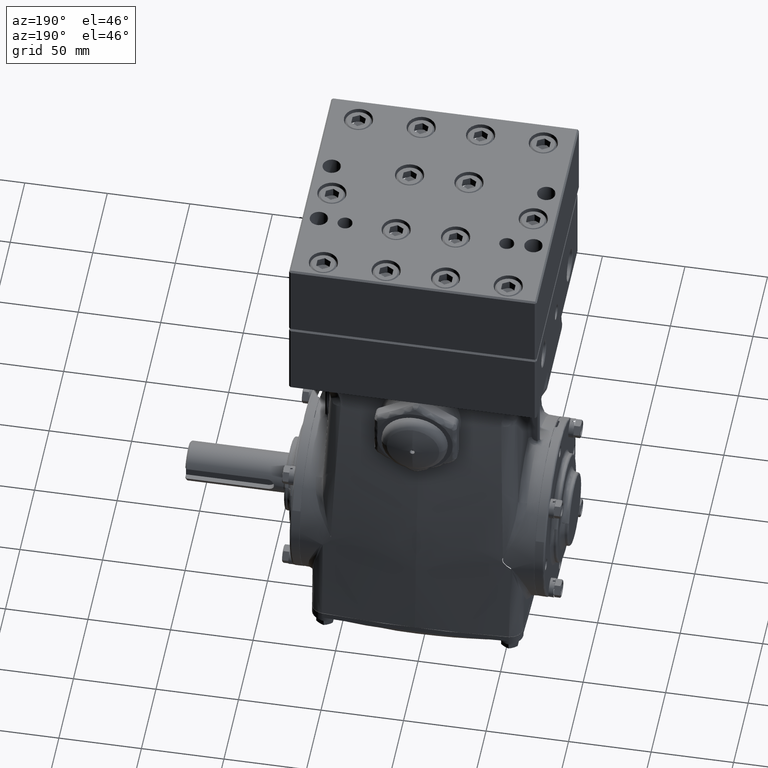
[diagram: clean part render]
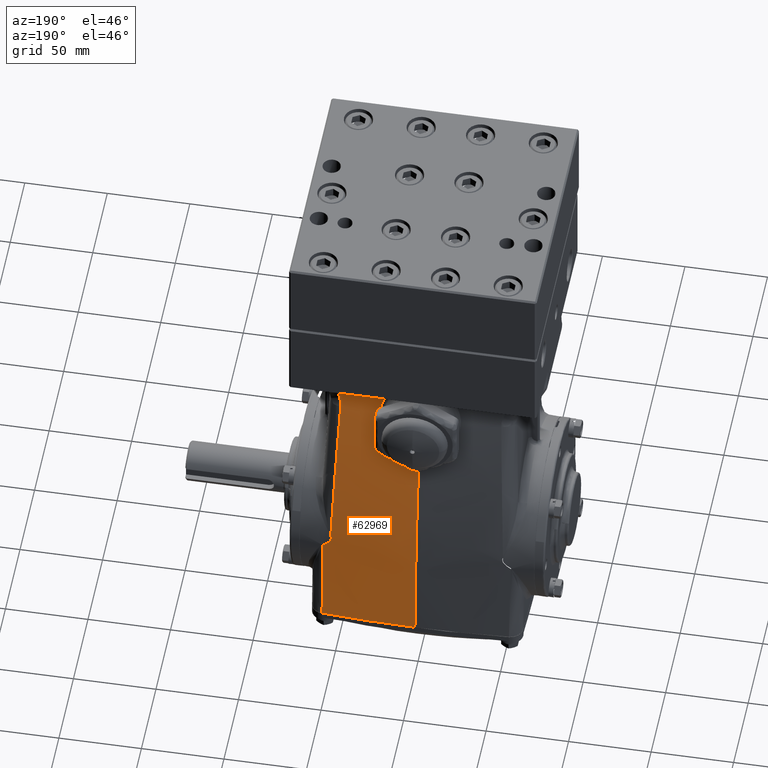
[diagram: same view with one face highlighted and labeled with its STEP entity id]
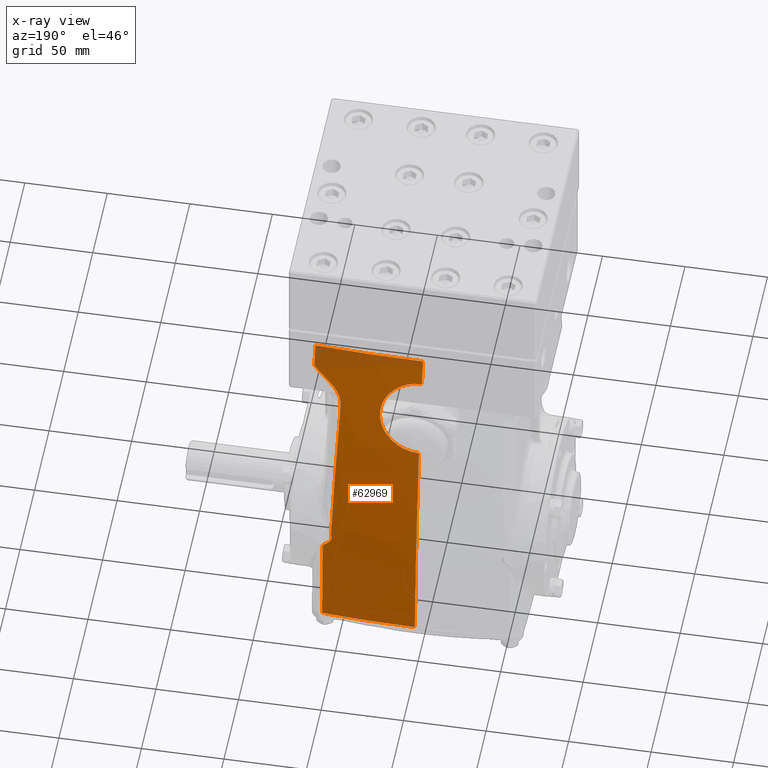
[diagram: x-ray of the same camera — body ghosted, the highlighted face saturated]
A machine part, auxiliary view. The second image highlights one B-rep face of the part: STEP entity #62969.
The next image is the same camera in x-ray: the body ghosted, the highlighted face saturated — about 7% of this face is hidden behind the body in this view.
In plain terms, the highlighted face is a freeform B-spline surface patch.
Its self-contained STEP definition (entity closure, byte-faithful):
#79 = CARTESIAN_POINT ( 'NONE',  ( -0.4731394191495172374, 2.398237061164405937, -2.165354330708661568 ) ) ;
#1351 = CARTESIAN_POINT ( 'NONE',  ( -0.8095103919857050689, 1.292140362101252382, 5.708661417322824505 ) ) ;
#1766 = CARTESIAN_POINT ( 'NONE',  ( -1.566192897389171446, 1.270407001257443991, 5.708661417322867138 ) ) ;
#2013 = CARTESIAN_POINT ( 'NONE',  ( 2.578671170726355211, 1.335102641929536871, 5.127045243281220799 ) ) ;
#2976 = B_SPLINE_CURVE_WITH_KNOTS ( 'NONE', 3,
 ( #28593, #34588, #73546, #47418 ),
 .UNSPECIFIED., .F., .F.,
 ( 4, 4 ),
 ( 0.001088878662660275332, 0.05488596565795428317 ),
 .UNSPECIFIED. ) ;
#2985 = EDGE_CURVE ( 'NONE', #10885, #54857, #49123, .T. ) ;
#3016 = CARTESIAN_POINT ( 'NONE',  ( 0.5933181033504503210, 1.791224152829905547, 3.356988519879162691 ) ) ;
#3397 = CARTESIAN_POINT ( 'NONE',  ( -7.629761195857950561E-17, 1.982659120498347916, 2.275230264263858437 ) ) ;
#3430 = CARTESIAN_POINT ( 'NONE',  ( 0.2066455304282949768, 1.831067194595412229, 3.175578635901488145 ) ) ;
#3567 = CARTESIAN_POINT ( 'NONE',  ( 2.043608718765483889, 2.136991848240978431, 0.1870679647836670512 ) ) ;
#3673 = CARTESIAN_POINT ( 'NONE',  ( 2.586414031944188618, 1.330825853974931805, 5.146055892413254007 ) ) ;
#3855 = CARTESIAN_POINT ( 'NONE',  ( 0.8708494686695560372, 1.719662461424737998, 3.696078290583389769 ) ) ;
#3992 = CARTESIAN_POINT ( 'NONE',  ( 2.118289369877804251, 2.142698611774983330, 0.06166686124301928168 ) ) ;
#4284 = CARTESIAN_POINT ( 'NONE',  ( 0.9611287857313430827, 1.658899699653148430, 3.995873098052594941 ) ) ;
#4344 = CARTESIAN_POINT ( 'NONE',  ( 3.450959980213676461E-17, 1.299212598425197429, 5.708661417322835163 ) ) ;
#4380 = CARTESIAN_POINT ( 'NONE',  ( 2.812979403157050307, 2.274754709963536570, -2.165354330708661568 ) ) ;
#4665 = CARTESIAN_POINT ( 'NONE',  ( 2.113476934372326976, 1.460827687103822603, 4.664159022983963787 ) ) ;
#4809 = CARTESIAN_POINT ( 'NONE',  ( -0.2434275427088355148, 1.298707510032789170, 5.708661417322846710 ) ) ;
#5015 = CARTESIAN_POINT ( 'NONE',  ( 2.044355463987427957, 2.128279285250508579, 0.2680828113186349282 ) ) ;
#5094 = CARTESIAN_POINT ( 'NONE',  ( -8.016133500422119341E-17, 2.106884914907209971, 1.393649014934724262 ) ) ;
#5130 = CARTESIAN_POINT ( 'NONE',  ( 0.08054166425364038540, 1.446093476583458992, 5.086882738810285076 ) ) ;
#5228 = CARTESIAN_POINT ( 'NONE',  ( 1.150346110494637530, 1.283976514928851342, 5.708661417322833387 ) ) ;
#5275 = B_SPLINE_SURFACE_WITH_KNOTS ( 'NONE', 3, 3, ( 
 ( #75894, #17222, #10801, #36942 ),
 ( #4380, #82755, #24096, #58330 ),
 ( #77590, #31791, #39036, #37355 ),
 ( #70344, #38621, #78450, #25806 ),
 ( #11629, #12902, #57896, #51895 ),
 ( #26230, #31379, #19335, #12045 ),
 ( #24519, #37788, #77168, #43773 ),
 ( #38208, #51467, #18065, #63907 ),
 ( #32219, #71204, #71627, #5648 ),
 ( #83613, #76732, #24947, #5228 ),
 ( #12476, #51027, #64769, #18903 ),
 ( #45050, #6084, #57477, #18478 ),
 ( #84460, #69916, #44616, #70771 ),
 ( #64345, #65191, #84029, #78025 ),
 ( #25370, #32654, #44195, #45463 ),
 ( #6515, #58761, #50628, #4809 ),
 ( #79, #30942, #11210, #52322 ),
 ( #63488, #57048, #83181, #1351 ),
 ( #54018, #79734, #47599, #45898 ),
 ( #60042, #21474, #27922, #1766 ),
 ( #80145, #33487, #66896, #78875 ),
 ( #8616, #52751, #40751, #33915 ),
 ( #8203, #59187, #20174, #21044 ),
 ( #73731, #46327, #34768, #39888 ),
 ( #72468, #40319, #15025, #13760 ),
 ( #47180, #67315, #27508, #41179 ),
 ( #72880, #73305, #72047, #60890 ),
 ( #66042, #13319, #7355, #14597 ) ),
 .UNSPECIFIED., .F., .F., .F.,
 ( 4, 1, 1, 1, 1, 1, 1, 1, 1, 1, 1, 3, 1, 1, 1, 1, 1, 1, 1, 1, 1, 1, 1, 4 ),
 ( 4, 4 ),
 ( 0.6820721574386665598, 0.6959246563835279620, 0.7035427212275893183, 0.7193976784518302248, 0.7310405802590583813, 0.7359332488469740863, 0.7508238822397268475, 0.7638475608825302521, 0.7796596398469348710, 0.7995163485322880348, 0.8173264764016470174, 0.8410360787193331689, 0.8577107850873244566, 0.8637457220820379256, 0.8805901526646464639, 0.9065920388027239873, 0.9224714650153007511, 0.9387315542144891722, 0.9421836685404010314, 0.9588536976265762402, 0.9664841599499356395, 0.9748837514135768600, 0.9901004416486960391, 1.000000000000000000 ),
 ( 0.000000000000000000, 1.000000000000000000 ),
 .UNSPECIFIED. ) ;
#5648 = CARTESIAN_POINT ( 'NONE',  ( 1.464488406949919552, 1.274012937168632842, 5.708661417322844933 ) ) ;
#5774 = VERTEX_POINT ( 'NONE', #51621 ) ;
#5984 = CARTESIAN_POINT ( 'NONE',  ( 0.6433779996093795805, 1.492703628457151543, 4.848150405952392994 ) ) ;
#6084 = CARTESIAN_POINT ( 'NONE',  ( 0.3973269798802252506, 2.297068369690827616, 0.4897784465330241033 ) ) ;
#6515 = CARTESIAN_POINT ( 'NONE',  ( -0.2386529819870307489, 2.400899943846330320, -2.165354330708661568 ) ) ;
#6850 = CARTESIAN_POINT ( 'NONE',  ( 0.7902471345203802011, 1.524914881969420266, 4.681808476390661333 ) ) ;
#7351 = CARTESIAN_POINT ( 'NONE',  ( 2.586362804630043755, 1.329823753665074770, 5.151270064738946886 ) ) ;
#7355 = CARTESIAN_POINT ( 'NONE',  ( -2.913385843901003192, 1.691985680221068877, 3.127925920230767431 ) ) ;
#7581 = CARTESIAN_POINT ( 'NONE',  ( 0.4056649939589584419, 1.297898323476693649, 5.708661417322814735 ) ) ;
#8203 = CARTESIAN_POINT ( 'NONE',  ( -2.035968259211032638, 2.335433637454252143, -2.165354330708661568 ) ) ;
#8616 = CARTESIAN_POINT ( 'NONE',  ( -1.866877324122242721, 2.345940473350991429, -2.165354330708661568 ) ) ;
#9101 = CARTESIAN_POINT ( 'NONE',  ( -3.553331779381568324E-16, 2.401107312964255058, -2.153091527327260835 ) ) ;
#9458 = CARTESIAN_POINT ( 'NONE',  ( 0.3149968055351912710, 1.824372806192152252, 3.205623488492979067 ) ) ;
#9997 = CARTESIAN_POINT ( 'NONE',  ( 2.038984479122270432, 2.132266257378619301, 0.2358320036178845058 ) ) ;
#10286 = CARTESIAN_POINT ( 'NONE',  ( 0.7307716510373686303, 1.763420215501402266, 3.486847099895347579 ) ) ;
#10704 = CARTESIAN_POINT ( 'NONE',  ( 0.9424672581809908634, 1.677446185038369952, 3.903529103138576595 ) ) ;
#10801 = CARTESIAN_POINT ( 'NONE',  ( 2.913385809642305091, 1.691985680221154587, 3.127925920230778090 ) ) ;
#10885 = VERTEX_POINT ( 'NONE', #20951 ) ;
#11073 = CARTESIAN_POINT ( 'NONE',  ( 1.982876757387885824, 1.507254981816013029, 4.474301887717918369 ) ) ;
#11210 = CARTESIAN_POINT ( 'NONE',  ( -0.4873200862093256536, 1.924545779200155238, 3.127925920230781642 ) ) ;
#11629 = CARTESIAN_POINT ( 'NONE',  ( 2.189576524486965603, 2.325080261920541513, -2.165354330708661568 ) ) ;
#11842 = CARTESIAN_POINT ( 'NONE',  ( 1.943646624093668951, 1.254362676313996783, 5.708661417322836940 ) ) ;
#12045 = CARTESIAN_POINT ( 'NONE',  ( 2.132997294791504572, 1.245100427256950137, 5.708661417322847598 ) ) ;
#12390 = CARTESIAN_POINT ( 'NONE',  ( 0.1605620357445411150, 1.447988655397608238, 5.077233423560211456 ) ) ;
#12476 = CARTESIAN_POINT ( 'NONE',  ( 0.7520193225572913143, 2.393118508680718737, -2.165354330708661568 ) ) ;
#12685 = CARTESIAN_POINT ( 'NONE',  ( 2.047901024090821309, 2.126340813064907742, 0.2828387324246887102 ) ) ;
#12712 = EDGE_CURVE ( 'NONE', #54857, #83894, #2976, .T. ) ;
#12805 = CARTESIAN_POINT ( 'NONE',  ( 0.5160278655444365814, 1.474502422586200012, 4.941722194200433904 ) ) ;
#12902 = CARTESIAN_POINT ( 'NONE',  ( 2.234415192802543526, 2.147607685230850105, 0.4897784465330339287 ) ) ;
#12994 = CARTESIAN_POINT ( 'NONE',  ( 1.889681467910129429E-08, 1.398385728573260156, 5.296640703349395629 ) ) ;
#13119 = CARTESIAN_POINT ( 'NONE',  ( 2.580420361868525525, 1.219814423293576366, 5.708661417322829834 ) ) ;
#13231 = CARTESIAN_POINT ( 'NONE',  ( 0.8837879089344028438, 1.556684492105498752, 4.517574585329223069 ) ) ;
#13319 = CARTESIAN_POINT ( 'NONE',  ( -2.913385628152182161, 2.048762232609131040, 0.4897784465330273784 ) ) ;
#13370 = CARTESIAN_POINT ( 'NONE',  ( 2.580420361868525525, 1.219814423293576366, 5.708661417322829834 ) ) ;
#13387 = CARTESIAN_POINT ( 'NONE',  ( 1.913792689305000794, 1.578652126433170100, 4.124995731966824231 ) ) ;
#13526 = ORIENTED_EDGE ( 'NONE', *, *, #12712, .T. ) ;
#13760 = CARTESIAN_POINT ( 'NONE',  ( -2.546430131488103932, 1.222062046991425621, 5.708661417322830722 ) ) ;
#14399 = VERTEX_POINT ( 'NONE', #45421 ) ;
#14597 = CARTESIAN_POINT ( 'NONE',  ( -2.913385826771653697, 1.197969208711458622, 5.708661417322836940 ) ) ;
#15025 = CARTESIAN_POINT ( 'NONE',  ( -2.511391663655022644, 1.752002329188374841, 3.127925920230763879 ) ) ;
#15323 = VERTEX_POINT ( 'NONE', #4344 ) ;
#15850 = EDGE_CURVE ( 'NONE', #19364, #15323, #50796, .T. ) ;
#15868 = CARTESIAN_POINT ( 'NONE',  ( 0.3449787976630959152, 1.821950353961405922, 3.216540131001417890 ) ) ;
#16841 = CARTESIAN_POINT ( 'NONE',  ( 2.086663981160558290, 2.141946370163340330, 0.09931180522621377293 ) ) ;
#17222 = CARTESIAN_POINT ( 'NONE',  ( 2.913386025391125234, 2.048762232609160794, 0.4897784465330322634 ) ) ;
#17258 = CARTESIAN_POINT ( 'NONE',  ( 2.077214970515636416, 2.141491778610241870, 0.1126631891245868516 ) ) ;
#17684 = CARTESIAN_POINT ( 'NONE',  ( 2.053717711146643587, 2.139269078108408717, 0.1560372837815801328 ) ) ;
#17861 = CARTESIAN_POINT ( 'NONE',  ( 2.576322194412808742, 1.220071041648136623, 5.708661417322824505 ) ) ;
#18065 = CARTESIAN_POINT ( 'NONE',  ( 1.694981807724714296, 1.848142482010741716, 3.127925920230768320 ) ) ;
#18101 = CARTESIAN_POINT ( 'NONE',  ( 2.040459019290793652, 2.135564256478419853, 0.2034737644382947352 ) ) ;
#18389 = CARTESIAN_POINT ( 'NONE',  ( 0.3151986056433667138, 1.455377961310618584, 5.039591650425441216 ) ) ;
#18478 = CARTESIAN_POINT ( 'NONE',  ( 0.4056649939589584419, 1.297898323476693649, 5.708661417322814735 ) ) ;
#18695 = CARTESIAN_POINT ( 'NONE',  ( 2.052843254757446001, 2.123694918800838050, 0.3027902077404308057 ) ) ;
#18702 = CARTESIAN_POINT ( 'NONE',  ( 1.464488406949919552, 1.274012937168632842, 5.708661417322844933 ) ) ;
#18814 = CARTESIAN_POINT ( 'NONE',  ( 0.06446866798773862040, 1.445856567849097329, 5.088089217278129794 ) ) ;
#18903 = CARTESIAN_POINT ( 'NONE',  ( 0.8019535934125048282, 1.292120820694525829, 5.708661417322820952 ) ) ;
#19248 = CARTESIAN_POINT ( 'NONE',  ( 0.4888797921504503541, 1.471286706367559649, 4.958214325787497323 ) ) ;
#19335 = CARTESIAN_POINT ( 'NONE',  ( 2.085131295870260804, 1.806265684984544873, 3.127925920230786083 ) ) ;
#19364 = VERTEX_POINT ( 'NONE', #13370 ) ;
#19390 = CARTESIAN_POINT ( 'NONE',  ( 2.227242516835840735, 2.321209563805544995, -2.152759186897168053 ) ) ;
#19662 = CARTESIAN_POINT ( 'NONE',  ( 0.9656080779111774204, 1.621775079081216209, 4.183527801579442595 ) ) ;
#20007 = CARTESIAN_POINT ( 'NONE',  ( 2.586362804630043755, 1.329823753665074770, 5.151270064738946886 ) ) ;
#20174 = CARTESIAN_POINT ( 'NONE',  ( -2.131484495458442208, 1.801026039677056101, 3.127925920230771872 ) ) ;
#20916 = EDGE_CURVE ( 'NONE', #62693, #63453, #41826, .T. ) ;
#20951 = CARTESIAN_POINT ( 'NONE',  ( 2.044355463987427957, 2.128279285250508579, 0.2680828113186349282 ) ) ;
#21044 = CARTESIAN_POINT ( 'NONE',  ( -2.179242577519465929, 1.242815352902282511, 5.708661417322839604 ) ) ;
#21474 = CARTESIAN_POINT ( 'NONE',  ( -1.480950586178896522, 2.231805334558643494, 0.4897784465330393688 ) ) ;
#22784 = B_SPLINE_CURVE_WITH_KNOTS ( 'NONE', 3,
 ( #13387, #38265, #84519, #31436, #70835, #65251 ),
 .UNSPECIFIED., .F., .F.,
 ( 4, 2, 4 ),
 ( 0.000000000000000000, 0.04904723555558240800, 0.09809447111116481599 ),
 .UNSPECIFIED. ) ;
#23153 = CARTESIAN_POINT ( 'NONE',  ( 0.7895195932548948470, 1.747619812788680616, 3.561772888436794293 ) ) ;
#23955 = CARTESIAN_POINT ( 'NONE',  ( 2.096129776760800034, 1.465843969454385887, 4.644982890269670150 ) ) ;
#23999 = CARTESIAN_POINT ( 'NONE',  ( 0.06459929520378440704, 1.836057302116699042, 3.153322082174860430 ) ) ;
#24096 = CARTESIAN_POINT ( 'NONE',  ( 2.832087334218518215, 1.704813401921131399, 3.127925920230778090 ) ) ;
#24133 = CARTESIAN_POINT ( 'NONE',  ( 2.040573113143062667, 2.130372523749104019, 0.2520858116330776388 ) ) ;
#24140 = EDGE_CURVE ( 'NONE', #83894, #14399, #49806, .T. ) ;
#24519 = CARTESIAN_POINT ( 'NONE',  ( 1.798349607840920461, 2.349958156103974627, -2.165354330708661568 ) ) ;
#24848 = CARTESIAN_POINT ( 'NONE',  ( 0.8408534539225615001, 1.540288871572166318, 4.602309156754101238 ) ) ;
#24947 = CARTESIAN_POINT ( 'NONE',  ( 1.120923444174019235, 1.894876309026148453, 3.127925920230774093 ) ) ;
#25163 = CARTESIAN_POINT ( 'NONE',  ( 1.741295670112191551, 1.263397575016612429, 5.708661417322822729 ) ) ;
#25281 = CARTESIAN_POINT ( 'NONE',  ( 0.9672713820068501445, 1.646538536074291015, 4.058006522140316541 ) ) ;
#25370 = CARTESIAN_POINT ( 'NONE',  ( -0.1020157036538342776, 2.401574803149599813, -2.165354330708661568 ) ) ;
#25719 = CARTESIAN_POINT ( 'NONE',  ( 0.9599596636209277722, 1.609408501972310557, 4.246538372213342960 ) ) ;
#25806 = CARTESIAN_POINT ( 'NONE',  ( 2.523490070267365493, 1.223445930611731125, 5.708661417322820064 ) ) ;
#26146 = CARTESIAN_POINT ( 'NONE',  ( 0.7319415609452398774, 1.510511002020254345, 4.756252534259797216 ) ) ;
#26230 = CARTESIAN_POINT ( 'NONE',  ( 1.989399371181384657, 2.338284998638617829, -2.165354330708661568 ) ) ;
#27373 = CARTESIAN_POINT ( 'NONE',  ( 1.913792689305000794, 1.578652126433170100, 4.124995731966824231 ) ) ;
#27508 = CARTESIAN_POINT ( 'NONE',  ( -2.708159283295305642, 1.723791484228667459, 3.127925920230769652 ) ) ;
#27524 = EDGE_CURVE ( 'NONE', #63453, #39028, #22784, .T. ) ;
#27643 = CARTESIAN_POINT ( 'NONE',  ( 2.584535606851970702, 1.294080410689277816, 5.337251396087705935 ) ) ;
#27922 = CARTESIAN_POINT ( 'NONE',  ( -1.523571933390364785, 1.864023738764600591, 3.127925920230789192 ) ) ;
#28593 = CARTESIAN_POINT ( 'NONE',  ( 2.244154975526539531, 2.140548279587432656, -0.04263853052005076028 ) ) ;
#29186 = CARTESIAN_POINT ( 'NONE',  ( 0.6057620011881454936, 1.789096022879973713, 3.366838808613130674 ) ) ;
#29592 = CARTESIAN_POINT ( 'NONE',  ( 0.4328265377979035877, 1.813782680613042597, 3.253492456797081989 ) ) ;
#29720 = CARTESIAN_POINT ( 'NONE',  ( 2.217111855764114292, 2.141468998871419060, -0.02405646177959843562 ) ) ;
#30018 = CARTESIAN_POINT ( 'NONE',  ( 0.9064667844229428173, 1.701914183292754679, 3.782771815187817577 ) ) ;
#30802 = CARTESIAN_POINT ( 'NONE',  ( 2.063488888649752884, 1.476050141854796438, 4.604872648964010828 ) ) ;
#30942 = CARTESIAN_POINT ( 'NONE',  ( -0.4802293617885408095, 2.293642939336617115, 0.4897784465330360937 ) ) ;
#31379 = CARTESIAN_POINT ( 'NONE',  ( 2.037265628463433398, 2.172062645620683519, 0.4897784465330372039 ) ) ;
#31436 = CARTESIAN_POINT ( 'NONE',  ( 2.010220420681156472, 1.978156669164423676, 1.583179683012722938 ) ) ;
#31541 = ORIENTED_EDGE ( 'NONE', *, *, #80340, .T. ) ;
#31700 = CARTESIAN_POINT ( 'NONE',  ( 0.04032141249026690438, 1.445619475605324000, 5.089296836793732126 ) ) ;
#31791 = CARTESIAN_POINT ( 'NONE',  ( 2.684844189044222063, 2.084204787240034662, 0.4897784465330306536 ) ) ;
#32130 = CARTESIAN_POINT ( 'NONE',  ( 0.1286849885896271528, 1.447041223724454762, 5.082056845242141740 ) ) ;
#32219 = CARTESIAN_POINT ( 'NONE',  ( 1.345329668388619115, 2.372960332906649317, -2.165354330708661568 ) ) ;
#32440 = CARTESIAN_POINT ( 'NONE',  ( 2.052668002272747927, 2.123788338986134505, 0.3020877454172159471 ) ) ;
#32632 = B_SPLINE_CURVE_WITH_KNOTS ( 'NONE', 3,
 ( #34053, #38766, #27643, #66605 ),
 .UNSPECIFIED., .F., .F.,
 ( 4, 4 ),
 ( -5.999999999966940033E-08, 0.01443155766111012782 ),
 .UNSPECIFIED. ) ;
#32654 = CARTESIAN_POINT ( 'NONE',  ( -0.1019934165441797186, 2.300768595909193692, 0.4897784465330312087 ) ) ;
#33381 = VERTEX_POINT ( 'NONE', #7351 ) ;
#33487 = CARTESIAN_POINT ( 'NONE',  ( -1.695585503688044504, 2.210467917730762899, 0.4897784465330279335 ) ) ;
#33708 = CARTESIAN_POINT ( 'NONE',  ( 0.8019535934125048282, 1.292120820694525829, 5.708661417322820952 ) ) ;
#33915 = CARTESIAN_POINT ( 'NONE',  ( -2.012704400865588106, 1.251118121441604725, 5.708661417322830722 ) ) ;
#34053 = CARTESIAN_POINT ( 'NONE',  ( 2.580420361868525525, 1.219814423293576366, 5.708661417322829834 ) ) ;
#34588 = CARTESIAN_POINT ( 'NONE',  ( 2.239546380805879977, 2.213566551445497410, -0.7448622437288106024 ) ) ;
#34768 = CARTESIAN_POINT ( 'NONE',  ( -2.326410604817633843, 1.776570720899578237, 3.127925920230762991 ) ) ;
#35047 = B_SPLINE_CURVE_WITH_KNOTS ( 'NONE', 3,
 ( #54117, #68261, #73830, #40425 ),
 .UNSPECIFIED., .F., .F.,
 ( 4, 4 ),
 ( 0.000000000000000000, 0.01616665010958682341 ),
 .UNSPECIFIED. ) ;
#36205 = B_SPLINE_CURVE_WITH_KNOTS ( 'NONE', 3,
 ( #36387, #82192, #36810, #83046, #5094, #3397, #62107, #56494 ),
 .UNSPECIFIED., .F., .F.,
 ( 4, 2, 2, 4 ),
 ( 0.0003113998746300996462, 0.06810555726670124155, 0.1020026359627368012, 0.1358997146587723748 ),
 .UNSPECIFIED. ) ;
#36387 = CARTESIAN_POINT ( 'NONE',  ( -3.553331779381568324E-16, 2.401107312964255058, -2.153091527327260835 ) ) ;
#36810 = CARTESIAN_POINT ( 'NONE',  ( -9.459155955198532228E-16, 2.302870744067759379, -0.3757870823018082396 ) ) ;
#36849 = CARTESIAN_POINT ( 'NONE',  ( 0.9458950846975647808, 1.674355009619317380, 3.918891003596449263 ) ) ;
#36942 = CARTESIAN_POINT ( 'NONE',  ( 2.913385826771655474, 1.197969208711458622, 5.708661417322835163 ) ) ;
#36981 = CARTESIAN_POINT ( 'NONE',  ( 2.153604286739067675, 2.142677141121248408, 0.02739613417404918733 ) ) ;
#37049 = EDGE_CURVE ( 'NONE', #33381, #41632, #69622, .T. ) ;
#37215 = CARTESIAN_POINT ( 'NONE',  ( 1.954921401464340791, 1.523061787492009600, 4.402702356222214952 ) ) ;
#37355 = CARTESIAN_POINT ( 'NONE',  ( 2.727940840439588843, 1.210589729325569186, 5.708661417322829834 ) ) ;
#37579 = CARTESIAN_POINT ( 'NONE',  ( 2.484440817764909770, 1.225721470078472430, 5.708661417322824505 ) ) ;
#37788 = CARTESIAN_POINT ( 'NONE',  ( 1.846782245487677443, 2.194251839819490346, 0.4897784465330333736 ) ) ;
#38208 = CARTESIAN_POINT ( 'NONE',  ( 1.602354164347862486, 2.360792373919399001, -2.165354330708661568 ) ) ;
#38265 = CARTESIAN_POINT ( 'NONE',  ( 1.939169078520298406, 1.694725303002851735, 3.491945384865736468 ) ) ;
#38297 = CARTESIAN_POINT ( 'NONE',  ( -1.384850827037492099E-08, 1.349635227852899577, 5.502833657239617260 ) ) ;
#38330 = ORIENTED_EDGE ( 'NONE', *, *, #73334, .T. ) ;
#38621 = CARTESIAN_POINT ( 'NONE',  ( 2.450684691601683340, 2.118214908375344319, 0.4897784465330273784 ) ) ;
#38766 = CARTESIAN_POINT ( 'NONE',  ( 2.582554774261374142, 1.257421128485751272, 5.523052830132542113 ) ) ;
#38826 = ORIENTED_EDGE ( 'NONE', *, *, #20916, .T. ) ;
#39028 = VERTEX_POINT ( 'NONE', #40020 ) ;
#39036 = CARTESIAN_POINT ( 'NONE',  ( 2.706392384829025666, 1.723957603235178659, 3.127925920230774093 ) ) ;
#39888 = CARTESIAN_POINT ( 'NONE',  ( -2.369125755900576280, 1.232386614232151567, 5.708661417322828946 ) ) ;
#40020 = CARTESIAN_POINT ( 'NONE',  ( 2.053194142686559864, 2.123507996596452063, 0.3041950259637326570 ) ) ;
#40319 = CARTESIAN_POINT ( 'NONE',  ( -2.476352911878936691, 2.114609130722263863, 0.4897784465330257131 ) ) ;
#40425 = CARTESIAN_POINT ( 'NONE',  ( 2.131860052545362816, 1.455898494205196236, 4.682448122466263740 ) ) ;
#40751 = CARTESIAN_POINT ( 'NONE',  ( -1.964095400574084938, 1.820132787096657490, 3.127925920230765211 ) ) ;
#40823 = CARTESIAN_POINT ( 'NONE',  ( 0.3716019788068585794, 2.401107303656055958, -2.153091527322794185 ) ) ;
#41179 = CARTESIAN_POINT ( 'NONE',  ( -2.729947521028391666, 1.210496205736397046, 5.708661417322837828 ) ) ;
#41632 = VERTEX_POINT ( 'NONE', #44389 ) ;
#41826 = B_SPLINE_CURVE_WITH_KNOTS ( 'NONE', 3,
 ( #56485, #4665, #23955, #30802, #50064, #69776, #11073, #37215, #63351, #56907, #83034, #59047, #73165, #27373 ),
 .UNSPECIFIED., .F., .F.,
 ( 4, 2, 2, 2, 2, 2, 4 ),
 ( 0.000000000000000000, 0.002006917460411369175, 0.004013834920822738350, 0.008027669841645471496, 0.01003458730205684067, 0.01204150476246820811, 0.01605533968329094993 ),
 .UNSPECIFIED. ) ;
#42017 = CARTESIAN_POINT ( 'NONE',  ( 0.4886140263089461255, 1.807145071133905878, 3.283690386975755438 ) ) ;
#42104 = ORIENTED_EDGE ( 'NONE', *, *, #37049, .T. ) ;
#42980 = CARTESIAN_POINT ( 'NONE',  ( 2.190893994370608944, 2.142160377084879830, -0.004468358595171829754 ) ) ;
#43367 = CARTESIAN_POINT ( 'NONE',  ( 1.913792689305000794, 1.578652126433170100, 4.124995731966824231 ) ) ;
#43773 = CARTESIAN_POINT ( 'NONE',  ( 1.943646624093668951, 1.254362676313996783, 5.708661417322836940 ) ) ;
#44195 = CARTESIAN_POINT ( 'NONE',  ( -0.1019719231317473690, 1.931427949591510762, 3.127925920230771872 ) ) ;
#44389 = CARTESIAN_POINT ( 'NONE',  ( 2.574974328991057604, 1.336104400314134022, 5.123366273300666407 ) ) ;
#44525 = CARTESIAN_POINT ( 'NONE',  ( 0.7716760308857147921, 1.520005616499535472, 4.707190689330424505 ) ) ;
#44616 = CARTESIAN_POINT ( 'NONE',  ( 0.1449928827331220804, 1.931427949591510762, 3.127925920230771872 ) ) ;
#44840 = CARTESIAN_POINT ( 'NONE',  ( 1.150346110494637530, 1.283976514928851342, 5.708661417322833387 ) ) ;
#44959 = CARTESIAN_POINT ( 'NONE',  ( -1.274984242628392523E-15, 1.445461229294053629, 5.090103064882366191 ) ) ;
#45050 = CARTESIAN_POINT ( 'NONE',  ( 0.3931574066697886560, 2.399831511276485863, -2.165354330708661568 ) ) ;
#45421 = CARTESIAN_POINT ( 'NONE',  ( -3.553331779381568324E-16, 2.401107312964255058, -2.153091527327260835 ) ) ;
#45463 = CARTESIAN_POINT ( 'NONE',  ( -0.1019499836553652977, 1.299212598425203424, 5.708661417322837828 ) ) ;
#45673 = CARTESIAN_POINT ( 'NONE',  ( 2.046101504699350926, 2.127312986832227804, 0.2754674812947199292 ) ) ;
#45799 = CARTESIAN_POINT ( 'NONE',  ( 0.8703003494871582868, 1.551087081194280737, 4.546494005402068161 ) ) ;
#45898 = CARTESIAN_POINT ( 'NONE',  ( -1.192739666030848023, 1.282981708238517982, 5.708661417322778320 ) ) ;
#46327 = CARTESIAN_POINT ( 'NONE',  ( -2.283695148368128258, 2.140796000541696831, 0.4897784465330257131 ) ) ;
#46419 = ORIENTED_EDGE ( 'NONE', *, *, #49564, .T. ) ;
#46551 = CARTESIAN_POINT ( 'NONE',  ( 2.975520257473792046E-07, 1.299212598425199872, 5.708661417322837828 ) ) ;
#46966 = ORIENTED_EDGE ( 'NONE', *, *, #2985, .T. ) ;
#47180 = CARTESIAN_POINT ( 'NONE',  ( -2.664582750533174949, 2.288033759751162410, -2.165354330708661568 ) ) ;
#47418 = CARTESIAN_POINT ( 'NONE',  ( 2.227242516835840735, 2.321209563805544995, -2.152759186897168053 ) ) ;
#47599 = CARTESIAN_POINT ( 'NONE',  ( -1.161614335099249162, 1.892574789840504090, 3.127925920230731460 ) ) ;
#47781 = CARTESIAN_POINT ( 'NONE',  ( 2.244154975526539531, 2.140548279587432656, -0.04263853052005076028 ) ) ;
#47847 = CARTESIAN_POINT ( 'NONE',  ( 2.585440017282558234, 1.331886858991679468, 5.140951107667772746 ) ) ;
#47952 = ORIENTED_EDGE ( 'NONE', *, *, #15850, .F. ) ;
#48024 = ORIENTED_EDGE ( 'NONE', *, *, #24140, .T. ) ;
#48093 = CARTESIAN_POINT ( 'NONE',  ( 2.227242516835840735, 2.321209563805544995, -2.152759186897168053 ) ) ;
#48262 = CARTESIAN_POINT ( 'NONE',  ( 2.581547405182520460, 1.334037875565112996, 5.131388924344277847 ) ) ;
#49123 = B_SPLINE_CURVE_WITH_KNOTS ( 'NONE', 3,
 ( #69540, #24133, #9997, #18101, #3567, #17684, #69124, #17258, #16841, #82791, #3992, #76776, #36981, #42980, #29720, #63115 ),
 .UNSPECIFIED., .F., .F.,
 ( 4, 2, 2, 2, 2, 2, 2, 4 ),
 ( 0.000000000000000000, 0.001262479239838065368, 0.002524958479676130737, 0.003787437719514196756, 0.005049916959352261474, 0.006312396199190327059, 0.007574875439028393512, 0.01009983391870452121 ),
 .UNSPECIFIED. ) ;
#49564 = EDGE_CURVE ( 'NONE', #19364, #33381, #32632, .T. ) ;
#49684 = CARTESIAN_POINT ( 'NONE',  ( 0.9306256475736158773, 1.686722155919021748, 3.857577703846204020 ) ) ;
#49806 = B_SPLINE_CURVE_WITH_KNOTS ( 'NONE', 3,
 ( #48093, #73379, #54088, #60117, #40823, #9101 ),
 .UNSPECIFIED., .F., .F.,
 ( 4, 2, 4 ),
 ( 2.221529986854170653E-16, 0.02830497638067614591, 0.05660995276135206977 ),
 .UNSPECIFIED. ) ;
#50064 = CARTESIAN_POINT ( 'NONE',  ( 2.048227176215684064, 1.481234032319028504, 4.583956750178723283 ) ) ;
#50628 = CARTESIAN_POINT ( 'NONE',  ( -0.2418360551790639246, 1.930064199602339103, 3.127925920230777201 ) ) ;
#50796 = B_SPLINE_CURVE_WITH_KNOTS ( 'NONE', 3,
 ( #13119, #17861, #37579, #50834, #70567, #11842, #25163, #18702, #44840, #33708, #7581, #60262, #66254, #46551, #54231, #65842 ),
 .UNSPECIFIED., .F., .F.,
 ( 4, 1, 1, 1, 1, 1, 1, 1, 1, 1, 3, 4 ),
 ( 0.06520171273649551236, 0.06753282007624346328, 0.1174024920637856823, 0.1540237005538281356, 0.1694129428060909270, 0.2162494616614028531, 0.2572137211546264846, 0.3069485252441864209, 0.3694051774372769659, 0.4254245802233757034, 0.4999999999999931721, 0.5000000764014950194 ),
 .UNSPECIFIED. ) ;
#50834 = CARTESIAN_POINT ( 'NONE',  ( 2.324091733874594556, 1.235065584125860205, 5.708661417322837828 ) ) ;
#50937 = CARTESIAN_POINT ( 'NONE',  ( 0.9554301720631616091, 1.603327808052289694, 4.277628539086538950 ) ) ;
#51027 = CARTESIAN_POINT ( 'NONE',  ( 0.7686644455069947535, 2.282642455870151466, 0.4897784465330279335 ) ) ;
#51370 = CARTESIAN_POINT ( 'NONE',  ( 0.03226603085782392411, 1.445560164890504762, 5.089598979694468284 ) ) ;
#51467 = CARTESIAN_POINT ( 'NONE',  ( 1.648668314213691533, 2.215500870424783830, 0.4897784465330284331 ) ) ;
#51621 = CARTESIAN_POINT ( 'NONE',  ( -1.274984242628392523E-15, 1.445461229294053629, 5.090103064882366191 ) ) ;
#51683 = CARTESIAN_POINT ( 'NONE',  ( 2.051680137896833678, 2.124314930510386557, 0.2981281011033421469 ) ) ;
#51805 = CARTESIAN_POINT ( 'NONE',  ( 0.9374267225573104101, 1.585341853739807183, 4.369806067430780594 ) ) ;
#51895 = CARTESIAN_POINT ( 'NONE',  ( 2.324091733874594556, 1.235065584125860205, 5.708661417322837828 ) ) ;
#51991 = CARTESIAN_POINT ( 'NONE',  ( 2.131860052545362816, 1.455898494205196236, 4.682448122466263740 ) ) ;
#52230 = CARTESIAN_POINT ( 'NONE',  ( 0.9674257110944358695, 1.631065580829812456, 4.136350087504880868 ) ) ;
#52322 = CARTESIAN_POINT ( 'NONE',  ( -0.4944103712627415104, 1.296520347643933091, 5.708661417322852039 ) ) ;
#52715 = CARTESIAN_POINT ( 'NONE',  ( 4.913136071072523174E-16, 1.836057301759951743, 3.153322082173252383 ) ) ;
#52751 = CARTESIAN_POINT ( 'NONE',  ( -1.915486056463422626, 2.186527716124472054, 0.4897784465330268233 ) ) ;
#53567 = ORIENTED_EDGE ( 'NONE', *, *, #27524, .T. ) ;
#54018 = CARTESIAN_POINT ( 'NONE',  ( -1.099363582922386673, 2.382977130700372648, -2.165354330708661568 ) ) ;
#54088 = CARTESIAN_POINT ( 'NONE',  ( 1.485659127593189410, 2.367827536078677131, -2.152937399985699773 ) ) ;
#54091 = ORIENTED_EDGE ( 'NONE', *, *, #74321, .T. ) ;
#54117 = CARTESIAN_POINT ( 'NONE',  ( 2.574974328991057604, 1.336104400314134022, 5.123366273300666407 ) ) ;
#54231 = CARTESIAN_POINT ( 'NONE',  ( 1.490400976550723298E-07, 1.299212598425199205, 5.708661417322837828 ) ) ;
#54857 = VERTEX_POINT ( 'NONE', #47781 ) ;
#55274 = CARTESIAN_POINT ( 'NONE',  ( 0.8416776436527463323, 1.731100539559012663, 3.640799853198356750 ) ) ;
#55690 = CARTESIAN_POINT ( 'NONE',  ( 0.5678631274822999453, 1.795369591084004179, 3.337844157325743133 ) ) ;
#56113 = CARTESIAN_POINT ( 'NONE',  ( 0.9169727454114507958, 1.695898520020460598, 3.812303417004026418 ) ) ;
#56485 = CARTESIAN_POINT ( 'NONE',  ( 2.131860052545362816, 1.455898494205196236, 4.682448122466263740 ) ) ;
#56494 = CARTESIAN_POINT ( 'NONE',  ( 4.913136071072523174E-16, 1.836057301759951743, 3.153322082173252383 ) ) ;
#56907 = CARTESIAN_POINT ( 'NONE',  ( 1.933107383546206037, 1.538854528032834734, 4.328488172486087748 ) ) ;
#57048 = CARTESIAN_POINT ( 'NONE',  ( -0.7760523888099779555, 2.282663781206291986, 0.4897784465330268233 ) ) ;
#57477 = CARTESIAN_POINT ( 'NONE',  ( 0.4014957656440674150, 1.927885586440226895, 3.127925920230758550 ) ) ;
#57896 = CARTESIAN_POINT ( 'NONE',  ( 2.279253307875169998, 1.782954428840550332, 3.127925920230779422 ) ) ;
#58123 = CARTESIAN_POINT ( 'NONE',  ( 2.053194142686559864, 2.123507996596452063, 0.3041950259637326570 ) ) ;
#58330 = CARTESIAN_POINT ( 'NONE',  ( 2.841641326625984565, 1.202961639721772835, 5.708661417322836940 ) ) ;
#58665 = CARTESIAN_POINT ( 'NONE',  ( 0.9670770789927324307, 1.627969835512179886, 4.152052922981179783 ) ) ;
#58761 = CARTESIAN_POINT ( 'NONE',  ( -0.2402441229366546194, 2.299342540392106837, 0.4897784465330339287 ) ) ;
#59047 = CARTESIAN_POINT ( 'NONE',  ( 1.914997405245976836, 1.559272713065359195, 4.227973954623273301 ) ) ;
#59098 = CARTESIAN_POINT ( 'NONE',  ( 0.5946663609481595003, 1.484859650876335646, 4.888530248302498826 ) ) ;
#59187 = CARTESIAN_POINT ( 'NONE',  ( -2.083726086542775580, 2.166614530041778952, 0.4897784465330300985 ) ) ;
#60042 = CARTESIAN_POINT ( 'NONE',  ( -1.438329920831150188, 2.368889522099582479, -2.165354330708661568 ) ) ;
#60117 = CARTESIAN_POINT ( 'NONE',  ( 0.7432005799770041721, 2.394457355549478805, -2.153057796680048597 ) ) ;
#60262 = CARTESIAN_POINT ( 'NONE',  ( 0.1449627675236096203, 1.299212598425194765, 5.708661417322837828 ) ) ;
#60890 = CARTESIAN_POINT ( 'NONE',  ( -2.862114397419967649, 1.201536995417321174, 5.708661417322835163 ) ) ;
#61967 = CARTESIAN_POINT ( 'NONE',  ( 2.574974328991057604, 1.336104400314134022, 5.123366273300666407 ) ) ;
#62107 = CARTESIAN_POINT ( 'NONE',  ( -4.466146051079346438E-16, 1.913088131938618153, 2.714857836103527600 ) ) ;
#62146 = CARTESIAN_POINT ( 'NONE',  ( 0.1282450143015183841, 1.834608345002693985, 3.159747366912881272 ) ) ;
#62561 = CARTESIAN_POINT ( 'NONE',  ( 0.2533926817482557992, 1.828505556673673871, 3.187054628844160131 ) ) ;
#62693 = VERTEX_POINT ( 'NONE', #51991 ) ;
#62969 = ADVANCED_FACE ( 'NONE', ( #74643 ), #5275, .T. ) ;
#63115 = CARTESIAN_POINT ( 'NONE',  ( 2.244154975526539531, 2.140548279587432656, -0.04263853052005076028 ) ) ;
#63351 = CARTESIAN_POINT ( 'NONE',  ( 1.946748905238079086, 1.528379903095722137, 4.378080018571826493 ) ) ;
#63395 = CARTESIAN_POINT ( 'NONE',  ( 0.2222672595200096968, 1.830271744323471061, 3.179138551028549475 ) ) ;
#63453 = VERTEX_POINT ( 'NONE', #43367 ) ;
#63488 = CARTESIAN_POINT ( 'NONE',  ( -0.7593239362273205284, 2.393134938270125467, -2.165354330708661568 ) ) ;
#63907 = CARTESIAN_POINT ( 'NONE',  ( 1.741295670112191551, 1.263397575016612429, 5.708661417322822729 ) ) ;
#64345 = CARTESIAN_POINT ( 'NONE',  ( -7.936972221735040067E-07, 2.401574803149599369, -2.165354330708661568 ) ) ;
#64676 = CARTESIAN_POINT ( 'NONE',  ( 0.01614265106011298495, 1.445481042056540266, 5.090002092305163650 ) ) ;
#64769 = CARTESIAN_POINT ( 'NONE',  ( 0.7853088048963535739, 1.913828282296075267, 3.127925920230765211 ) ) ;
#64937 = B_SPLINE_CURVE_WITH_KNOTS ( 'NONE', 3,
 ( #84128, #12994, #38297, #65718 ),
 .UNSPECIFIED., .F., .F.,
 ( 4, 4 ),
 ( 0.1860543191475172720, 0.2021863343224881704 ),
 .UNSPECIFIED. ) ;
#65191 = CARTESIAN_POINT ( 'NONE',  ( 1.163670133464663677E-17, 2.300768595909193692, 0.4897784465330312087 ) ) ;
#65251 = CARTESIAN_POINT ( 'NONE',  ( 2.053194142686559864, 2.123507996596452063, 0.3041950259637326570 ) ) ;
#65409 = CARTESIAN_POINT ( 'NONE',  ( 2.049718606573461166, 2.125365367588376575, 0.2902049147125475015 ) ) ;
#65547 = VERTEX_POINT ( 'NONE', #52715 ) ;
#65718 = CARTESIAN_POINT ( 'NONE',  ( 3.450959980213676461E-17, 1.299212598425197429, 5.708661417322835163 ) ) ;
#65842 = CARTESIAN_POINT ( 'NONE',  ( 3.450959980213676461E-17, 1.299212598425197429, 5.708661417322835163 ) ) ;
#66042 = CARTESIAN_POINT ( 'NONE',  ( -2.913385826771654141, 2.265344068576858216, -2.165354330708661568 ) ) ;
#66254 = CARTESIAN_POINT ( 'NONE',  ( 4.460639497433702925E-07, 1.299212598425199872, 5.708661417322837828 ) ) ;
#66543 = ORIENTED_EDGE ( 'NONE', *, *, #74678, .T. ) ;
#66605 = CARTESIAN_POINT ( 'NONE',  ( 2.586362804630043755, 1.329823753665074770, 5.151270064738946886 ) ) ;
#66787 = EDGE_CURVE ( 'NONE', #14399, #65547, #36205, .T. ) ;
#66896 = CARTESIAN_POINT ( 'NONE',  ( -1.742463560137298861, 1.843263351871661682, 3.127925920230766099 ) ) ;
#67315 = CARTESIAN_POINT ( 'NONE',  ( -2.686370785910835668, 2.084068835673689168, 0.4897784465330284331 ) ) ;
#68261 = CARTESIAN_POINT ( 'NONE',  ( 2.427290454833202382, 1.376123305585299272, 4.976396351799645679 ) ) ;
#68993 = CARTESIAN_POINT ( 'NONE',  ( 0.5548157912006951298, 1.797392117569905468, 3.328526122958151312 ) ) ;
#69124 = CARTESIAN_POINT ( 'NONE',  ( 2.060662642086683594, 2.140149228468940734, 0.1411380803277838825 ) ) ;
#69405 = CARTESIAN_POINT ( 'NONE',  ( 0.9348349137624539784, 1.683629070884896217, 3.872875714643420064 ) ) ;
#69540 = CARTESIAN_POINT ( 'NONE',  ( 2.044355463987427957, 2.128279285250508579, 0.2680828113186349282 ) ) ;
#69622 = B_SPLINE_CURVE_WITH_KNOTS ( 'NONE', 3,
 ( #20007, #3673, #47847, #48262, #2013, #61967 ),
 .UNSPECIFIED., .F., .F.,
 ( 4, 2, 4 ),
 ( 2.860979249076398407E-17, 0.0003987412940839052140, 0.0007974825881677818050 ),
 .UNSPECIFIED. ) ;
#69776 = CARTESIAN_POINT ( 'NONE',  ( 2.006197590821474197, 1.496792152695942901, 4.519617041527910217 ) ) ;
#69916 = CARTESIAN_POINT ( 'NONE',  ( 0.1450234440065842623, 2.300768595909193692, 0.4897784465330312087 ) ) ;
#70245 = CARTESIAN_POINT ( 'NONE',  ( 0.9644831214159411692, 1.618667759299428743, 4.199342229287558403 ) ) ;
#70344 = CARTESIAN_POINT ( 'NONE',  ( 2.414281635307358176, 2.308400903803341286, -2.165354330708661568 ) ) ;
#70559 = CARTESIAN_POINT ( 'NONE',  ( 2.053018764334046509, 2.123601462032815412, 0.3034926010330931678 ) ) ;
#70567 = CARTESIAN_POINT ( 'NONE',  ( 2.132997294791504572, 1.245100427256950137, 5.708661417322847598 ) ) ;
#70771 = CARTESIAN_POINT ( 'NONE',  ( 0.1449627675236096203, 1.299212598425194765, 5.708661417322837828 ) ) ;
#70835 = CARTESIAN_POINT ( 'NONE',  ( 2.032358843832670292, 2.056376370780970575, 0.9443930657390869898 ) ) ;
#71119 = CARTESIAN_POINT ( 'NONE',  ( 0.7107172724088216542, 1.505913706992816126, 4.779993862681469530 ) ) ;
#71204 = CARTESIAN_POINT ( 'NONE',  ( 1.385049581091533977, 2.240167768303182871, 0.4897784465330360937 ) ) ;
#71533 = CARTESIAN_POINT ( 'NONE',  ( 0.9195789750301700538, 1.573690374301592865, 4.429810660793449095 ) ) ;
#71627 = CARTESIAN_POINT ( 'NONE',  ( 1.424768798695146943, 1.872199753906897080, 3.127925920230782530 ) ) ;
#71886 = B_SPLINE_CURVE_WITH_KNOTS ( 'NONE', 3,
 ( #58123, #70559, #18695, #32440, #51683, #84249, #65409, #12685, #45673, #5015 ),
 .UNSPECIFIED., .F., .F.,
 ( 4, 3, 3, 4 ),
 ( -5.562569102119109104E-05, 0.000000000000000000, 0.0003135512665637998626, 0.0008964518825718768413 ),
 .UNSPECIFIED. ) ;
#71958 = CARTESIAN_POINT ( 'NONE',  ( 0.2544585553639732156, 1.451715161675748211, 5.058253401313941744 ) ) ;
#72047 = CARTESIAN_POINT ( 'NONE',  ( -2.855287436206074059, 1.701152819370444380, 3.127925920230767431 ) ) ;
#72468 = CARTESIAN_POINT ( 'NONE',  ( -2.441314665332591005, 2.306279735125305486, -2.165354330708661568 ) ) ;
#72880 = CARTESIAN_POINT ( 'NONE',  ( -2.841633460699813707, 2.272069094341538253, -2.165354330708661568 ) ) ;
#73165 = CARTESIAN_POINT ( 'NONE',  ( 1.911712936028525656, 1.569139206086894722, 4.176878153945166261 ) ) ;
#73305 = CARTESIAN_POINT ( 'NONE',  ( -2.848460234453425777, 2.059014184365152378, 0.4897784465330273784 ) ) ;
#73334 = EDGE_CURVE ( 'NONE', #5774, #15323, #64937, .T. ) ;
#73379 = CARTESIAN_POINT ( 'NONE',  ( 1.856596089375250891, 2.347836400576191807, -2.152851640792330379 ) ) ;
#73546 = CARTESIAN_POINT ( 'NONE',  ( 2.233845073485670962, 2.273746941961116264, -1.448359403269036561 ) ) ;
#73731 = CARTESIAN_POINT ( 'NONE',  ( -2.240980235268052567, 2.321187910974375601, -2.165354330708661568 ) ) ;
#73830 = CARTESIAN_POINT ( 'NONE',  ( 2.279618857958575884, 1.416278901517129540, 4.829451229673164647 ) ) ;
#74321 = EDGE_CURVE ( 'NONE', #41632, #62693, #35047, .T. ) ;
#74551 = CARTESIAN_POINT ( 'NONE',  ( 4.913136071072523174E-16, 1.836057301759951743, 3.153322082173252383 ) ) ;
#74643 = FACE_OUTER_BOUND ( 'NONE', #79821, .T. ) ;
#74678 = EDGE_CURVE ( 'NONE', #65547, #5774, #84012, .T. ) ;
#75378 = CARTESIAN_POINT ( 'NONE',  ( 0.6422591814072776684, 1.782550782372619880, 3.397208525460233997 ) ) ;
#75793 = CARTESIAN_POINT ( 'NONE',  ( 0.7706295694341125380, 1.753039094228238559, 3.535988971856117491 ) ) ;
#75894 = CARTESIAN_POINT ( 'NONE',  ( 2.913385826771653697, 2.265344068576853775, -2.165354330708661568 ) ) ;
#76732 = CARTESIAN_POINT ( 'NONE',  ( 1.091501189288772045, 2.263308735351807321, 0.4897784465330322634 ) ) ;
#76776 = CARTESIAN_POINT ( 'NONE',  ( 2.141518609228191483, 2.142761626880098635, 0.03843709217641429893 ) ) ;
#77073 = CARTESIAN_POINT ( 'NONE',  ( 0.4326564059834074327, 1.465345589794402770, 4.988646893029095253 ) ) ;
#77168 = CARTESIAN_POINT ( 'NONE',  ( 1.895214259565363601, 1.827571154474304294, 3.127925920230778090 ) ) ;
#77590 = CARTESIAN_POINT ( 'NONE',  ( 2.663295530942336509, 2.288034568519320633, -2.165354330708661568 ) ) ;
#77934 = CARTESIAN_POINT ( 'NONE',  ( 0.007991942765933663859, 1.445461232022048570, 5.090103061987336197 ) ) ;
#78025 = CARTESIAN_POINT ( 'NONE',  ( 4.460639497433702925E-07, 1.299212598425199872, 5.708661417322837828 ) ) ;
#78362 = CARTESIAN_POINT ( 'NONE',  ( 0.4035240144287295383, 1.462619888851461658, 5.002588478119784909 ) ) ;
#78450 = CARTESIAN_POINT ( 'NONE',  ( 2.487087237515690497, 1.755350102494653619, 3.127925920230767431 ) ) ;
#78875 = CARTESIAN_POINT ( 'NONE',  ( -1.789341252083276768, 1.261249471572284842, 5.708661417322832499 ) ) ;
#79558 = ORIENTED_EDGE ( 'NONE', *, *, #66787, .T. ) ;
#79734 = CARTESIAN_POINT ( 'NONE',  ( -1.130488594888032106, 2.260970933480409784, 0.4897784465330104475 ) ) ;
#79821 = EDGE_LOOP ( 'NONE', ( #13526, #48024, #79558, #66543, #38330, #47952, #46419, #42104, #54091, #38826, #53567, #31541, #46966 ) ) ;
#80145 = CARTESIAN_POINT ( 'NONE',  ( -1.648708095812247088, 2.358238290425401562, -2.165354330708661568 ) ) ;
#80340 = EDGE_CURVE ( 'NONE', #39028, #10885, #71886, .T. ) ;
#81809 = CARTESIAN_POINT ( 'NONE',  ( 0.6887007126048561023, 1.773395714737921569, 3.439881183082059479 ) ) ;
#82192 = CARTESIAN_POINT ( 'NONE',  ( 3.593409488120000932E-16, 2.367043445073854002, -1.263200589613154179 ) ) ;
#82755 = CARTESIAN_POINT ( 'NONE',  ( 2.822533585408712575, 2.063108027997046179, 0.4897784465330322634 ) ) ;
#82791 = CARTESIAN_POINT ( 'NONE',  ( 2.107178115646282546, 2.142550459315986089, 0.07382979369070853670 ) ) ;
#83034 = CARTESIAN_POINT ( 'NONE',  ( 1.927611122228684026, 1.544016712790778012, 4.303500443620479565 ) ) ;
#83046 = CARTESIAN_POINT ( 'NONE',  ( -9.400979228033020406E-16, 2.161540637553380773, 0.9516246190699118035 ) ) ;
#83085 = CARTESIAN_POINT ( 'NONE',  ( 0.2689366647110957298, 1.827531859230574263, 3.191424109076885784 ) ) ;
#83181 = CARTESIAN_POINT ( 'NONE',  ( -0.7927816049644650365, 1.913850617605289184, 3.127925920230762991 ) ) ;
#83613 = CARTESIAN_POINT ( 'NONE',  ( 1.062078202322146669, 2.384053432892066837, -2.165354330708661568 ) ) ;
#83894 = VERTEX_POINT ( 'NONE', #19390 ) ;
#84012 = B_SPLINE_CURVE_WITH_KNOTS ( 'NONE', 3,
 ( #74551, #23999, #62146, #3430, #63395, #62561, #83085, #9458, #15868, #29592, #42017, #68993, #55690, #3016, #29186, #75378, #81809, #10286, #75793, #23153, #55274, #3855, #30018, #56113, #49684, #69405, #10704, #36849, #4284, #25281, #52230, #58665, #19662, #70245, #25719, #50937, #51805, #71533, #13231, #45799, #24848, #84804, #6850, #44525, #26146, #71119, #5984, #59098, #12805, #19248, #77073, #78362, #18389, #71958, #12390, #32130, #5130, #18814, #31700, #51370, #64676, #77934, #44959 ),
 .UNSPECIFIED., .F., .F.,
 ( 4, 2, 2, 2, 2, 2, 2, 2, 1, 2, 2, 2, 2, 2, 2, 2, 2, 2, 2, 2, 2, 2, 2, 2, 2, 2, 2, 2, 2, 2, 2, 4 ),
 ( 4.015448966270820826E-18, 0.004871676645388455483, 0.006089595806735568703, 0.007307514968082681056, 0.009743353290776905762, 0.01461502993616535864, 0.01583294909751246579, 0.01705086825885956947, 0.01948670658155378724, 0.02192254490424800500, 0.02435838322694221930, 0.02923005987233065830, 0.03166589819502486219, 0.03288381735637196240, 0.03410173651771906261, 0.03897341316310741488, 0.04019133232445448733, 0.04140925148580155285, 0.04384508980849566306, 0.04871676645388386961, 0.05115260477657797289, 0.05358844309927207616, 0.05602428142196618638, 0.05846011974466028965, 0.06333179639004846151, 0.06576763471274256478, 0.06820347303543668194, 0.07307514968082493012, 0.07551098800351906115, 0.07672890716486611973, 0.07733786674553964902, 0.07794682632621317830 ),
 .UNSPECIFIED. ) ;
#84029 = CARTESIAN_POINT ( 'NONE',  ( 2.319896085376018283E-17, 1.931427949591510762, 3.127925920230771872 ) ) ;
#84128 = CARTESIAN_POINT ( 'NONE',  ( -1.274984242628392523E-15, 1.445461229294053629, 5.090103064882366191 ) ) ;
#84249 = CARTESIAN_POINT ( 'NONE',  ( 2.050696319507217424, 2.124840656513260484, 0.2941673272930121485 ) ) ;
#84460 = CARTESIAN_POINT ( 'NONE',  ( 0.1450532115828242763, 2.401574803149599369, -2.165354330708661568 ) ) ;
#84519 = CARTESIAN_POINT ( 'NONE',  ( 1.963626619177780919, 1.797341108968449674, 2.856902942451461591 ) ) ;
#84804 = CARTESIAN_POINT ( 'NONE',  ( 0.8248358664637551740, 1.535056502061034500, 4.629367722570784771 ) ) ;